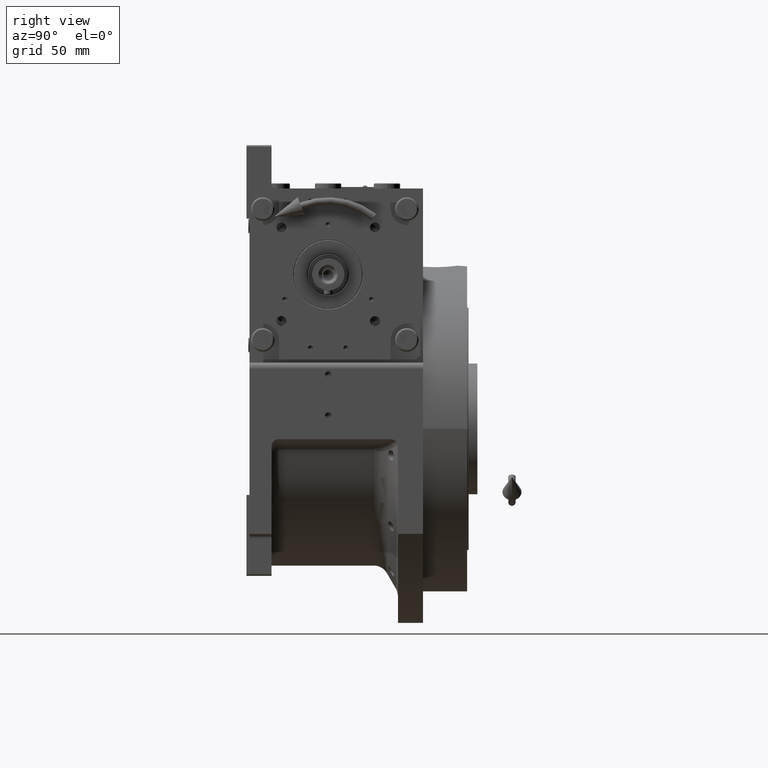
[diagram: clean part render]
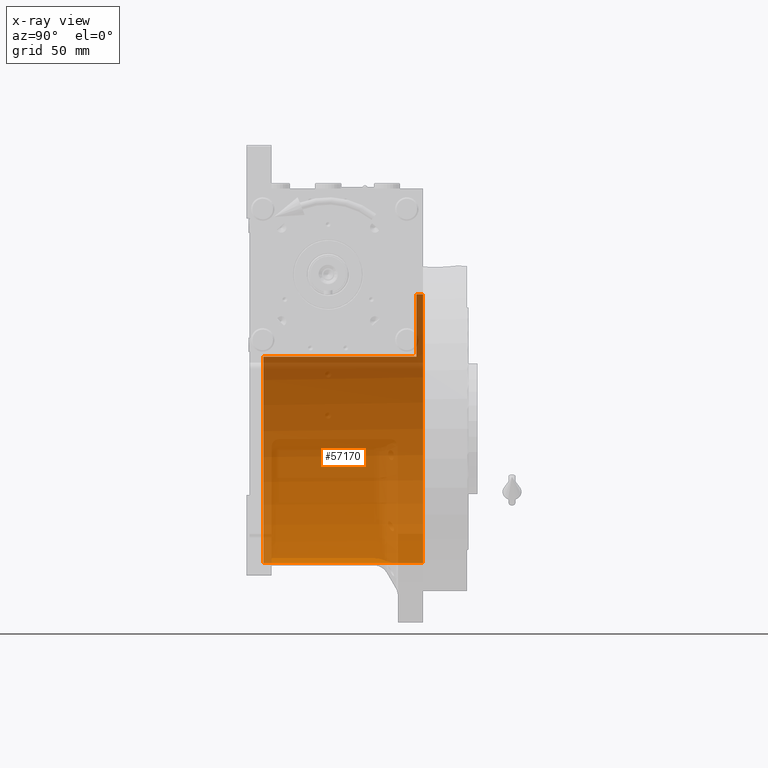
[diagram: x-ray — body ghosted, one internal face saturated and labeled with its STEP entity id]
A machine part, right view, then the same camera in x-ray: the body is ghosted and one INTERNAL B-rep face — a face not visible from any outside direction — is saturated and labeled: STEP entity #57170.
In plain terms, the highlighted cylindrical surface (partial cylindrical patch) has radius 91.5 mm, axis along (0, -1, 0).
Its self-contained STEP definition (entity closure, byte-faithful):
#393 = VECTOR ( 'NONE', #1419, 1000.000000000000000 ) ;
#1419 = DIRECTION ( 'NONE',  ( 0.000000000000000000, -1.000000000000000000, 0.000000000000000000 ) ) ;
#1461 = ORIENTED_EDGE ( 'NONE', *, *, #15382, .F. ) ;
#1912 = AXIS2_PLACEMENT_3D ( 'NONE', #14137, #34201, #18618 ) ;
#2322 = VERTEX_POINT ( 'NONE', #33742 ) ;
#2344 = CARTESIAN_POINT ( 'NONE',  ( 0.000000000000000000, -44.00000000000000000, 0.000000000000000000 ) ) ;
#3740 = VERTEX_POINT ( 'NONE', #65796 ) ;
#6733 = AXIS2_PLACEMENT_3D ( 'NONE', #2344, #29281, #65499 ) ;
#7773 = CARTESIAN_POINT ( 'NONE',  ( 1.120551821219827868E-14, 64.50000000000000000, 91.50000000000000000 ) ) ;
#8244 = ORIENTED_EDGE ( 'NONE', *, *, #46614, .T. ) ;
#10202 = DIRECTION ( 'NONE',  ( 0.000000000000000000, -1.000000000000000000, 0.000000000000000000 ) ) ;
#11212 = CARTESIAN_POINT ( 'NONE',  ( 1.120551821219827868E-14, 60.00000000000000000, 91.50000000000000000 ) ) ;
#11629 = VECTOR ( 'NONE', #10202, 1000.000000000000000 ) ;
#14019 = DIRECTION ( 'NONE',  ( 0.000000000000000000, 0.000000000000000000, 1.000000000000000000 ) ) ;
#14137 = CARTESIAN_POINT ( 'NONE',  ( 0.000000000000000000, 69.00000000000004263, 0.000000000000000000 ) ) ;
#15382 = EDGE_CURVE ( 'NONE', #39684, #31010, #29658, .T. ) ;
#16128 = VERTEX_POINT ( 'NONE', #64631 ) ;
#17571 = CARTESIAN_POINT ( 'NONE',  ( 0.000000000000000000, 60.00000000000000000, 0.000000000000000000 ) ) ;
#18618 = DIRECTION ( 'NONE',  ( 0.000000000000000000, 0.000000000000000000, -1.000000000000000000 ) ) ;
#20843 = CARTESIAN_POINT ( 'NONE',  ( -77.27386362800814368, 60.00000000000000000, 48.99999999999998579 ) ) ;
#21755 = DIRECTION ( 'NONE',  ( 0.000000000000000000, 1.000000000000000000, 0.000000000000000000 ) ) ;
#23808 = CYLINDRICAL_SURFACE ( 'NONE', #1912, 91.50000000000000000 ) ;
#25115 = ORIENTED_EDGE ( 'NONE', *, *, #51032, .F. ) ;
#26366 = AXIS2_PLACEMENT_3D ( 'NONE', #17571, #21755, #64870 ) ;
#27102 = VERTEX_POINT ( 'NONE', #7773 ) ;
#27680 = LINE ( 'NONE', #48726, #393 ) ;
#29281 = DIRECTION ( 'NONE',  ( 0.000000000000000000, 1.000000000000000000, 0.000000000000000000 ) ) ;
#29501 = EDGE_CURVE ( 'NONE', #3740, #16128, #66234, .T. ) ;
#29658 = CIRCLE ( 'NONE', #26366, 91.50000000000000000 ) ;
#30712 = CARTESIAN_POINT ( 'NONE',  ( -77.27386362800812947, 69.00000000000004263, 48.99999999999998579 ) ) ;
#31010 = VERTEX_POINT ( 'NONE', #11212 ) ;
#31514 = EDGE_LOOP ( 'NONE', ( #25115, #8244, #1461, #38048, #49418, #41970 ) ) ;
#33742 = CARTESIAN_POINT ( 'NONE',  ( 0.000000000000000000, 64.50000000000000000, -91.50000000000000000 ) ) ;
#34201 = DIRECTION ( 'NONE',  ( 0.000000000000000000, -1.000000000000000000, 0.000000000000000000 ) ) ;
#35785 = EDGE_CURVE ( 'NONE', #2322, #3740, #27680, .T. ) ;
#36202 = AXIS2_PLACEMENT_3D ( 'NONE', #66834, #36486, #14019 ) ;
#36486 = DIRECTION ( 'NONE',  ( -0.000000000000000000, -1.000000000000000000, -0.000000000000000000 ) ) ;
#38048 = ORIENTED_EDGE ( 'NONE', *, *, #54731, .F. ) ;
#39684 = VERTEX_POINT ( 'NONE', #20843 ) ;
#40819 = VECTOR ( 'NONE', #45251, 1000.000000000000000 ) ;
#41970 = ORIENTED_EDGE ( 'NONE', *, *, #35785, .F. ) ;
#45251 = DIRECTION ( 'NONE',  ( -0.000000000000000000, 1.000000000000000000, -0.000000000000000000 ) ) ;
#45821 = LINE ( 'NONE', #62349, #11629 ) ;
#46268 = FACE_OUTER_BOUND ( 'NONE', #31514, .T. ) ;
#46614 = EDGE_CURVE ( 'NONE', #27102, #31010, #45821, .T. ) ;
#48726 = CARTESIAN_POINT ( 'NONE',  ( 0.000000000000000000, 69.00000000000004263, -91.50000000000000000 ) ) ;
#49418 = ORIENTED_EDGE ( 'NONE', *, *, #29501, .F. ) ;
#51032 = EDGE_CURVE ( 'NONE', #27102, #2322, #65910, .T. ) ;
#54731 = EDGE_CURVE ( 'NONE', #16128, #39684, #61102, .T. ) ;
#57170 = ADVANCED_FACE ( 'NONE', ( #46268 ), #23808, .F. ) ;
#61102 = LINE ( 'NONE', #30712, #40819 ) ;
#62349 = CARTESIAN_POINT ( 'NONE',  ( 1.120551821219827868E-14, 69.00000000000004263, 91.50000000000000000 ) ) ;
#64631 = CARTESIAN_POINT ( 'NONE',  ( -77.27386362800814368, -44.00000000000000000, 49.00000000000000000 ) ) ;
#64870 = DIRECTION ( 'NONE',  ( 1.776356839400250465E-15, 0.000000000000000000, -1.000000000000000000 ) ) ;
#65499 = DIRECTION ( 'NONE',  ( 0.000000000000000000, 0.000000000000000000, 1.000000000000000000 ) ) ;
#65796 = CARTESIAN_POINT ( 'NONE',  ( 0.000000000000000000, -44.00000000000000000, -91.50000000000000000 ) ) ;
#65910 = CIRCLE ( 'NONE', #36202, 91.50000000000000000 ) ;
#66234 = CIRCLE ( 'NONE', #6733, 91.50000000000000000 ) ;
#66834 = CARTESIAN_POINT ( 'NONE',  ( 0.000000000000000000, 64.50000000000000000, 0.000000000000000000 ) ) ;